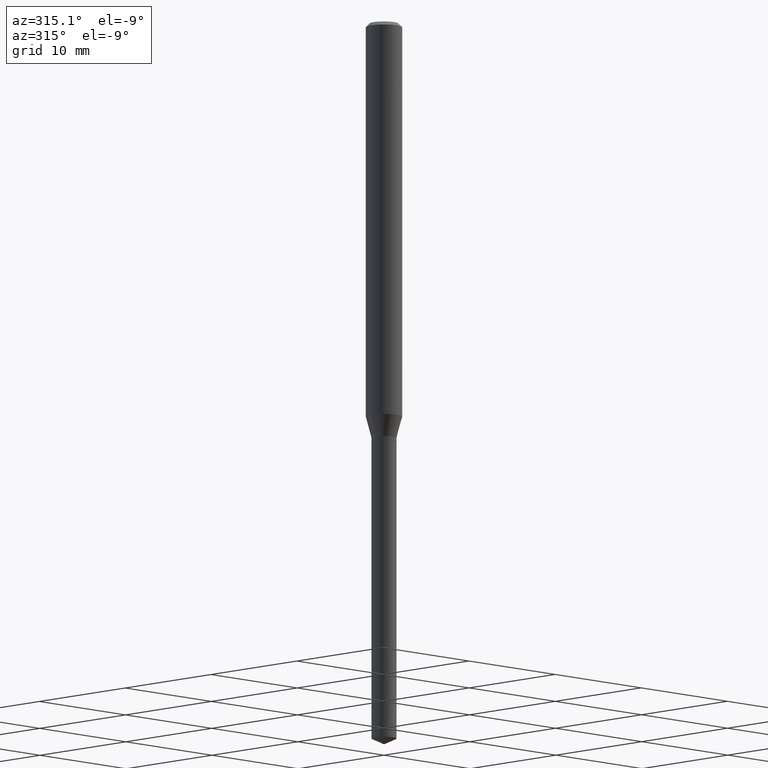
[diagram: clean part render]
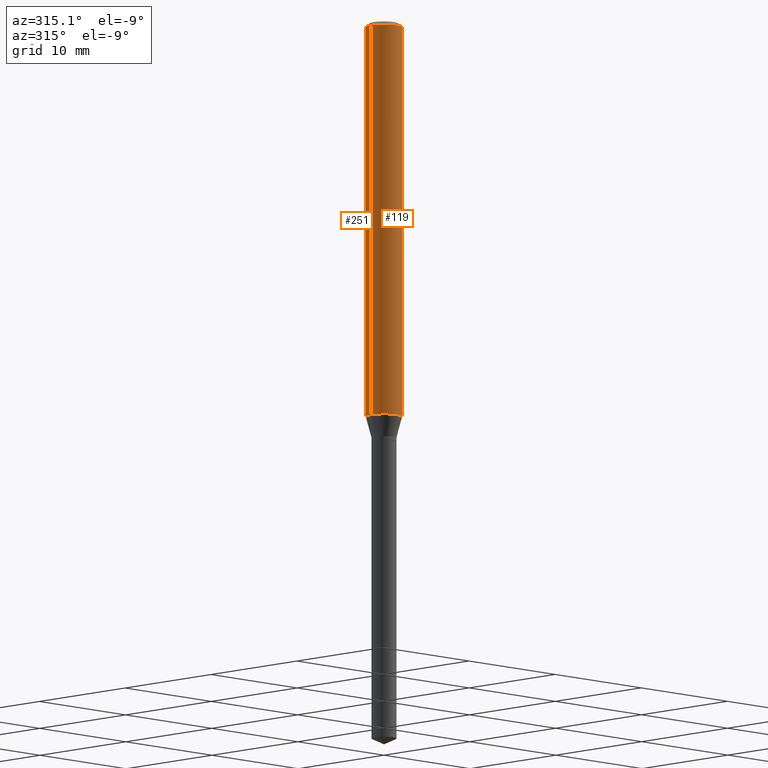
[diagram: same view with one multi-face feature highlighted, each face labeled with its STEP entity id]
A machine part, auxiliary view. The highlighted faces form ONE feature: a constant-radius fillet chain: 2 tangent blend faces with common blend radius 1.4999 mm. The faces share edges in the B-rep.
Their STEP definitions:
[1] entity #251 (Cylinder):
#8 = CYLINDRICAL_SURFACE ( 'NONE', #31, 0.05905000000000008159 ) ;
#13 = EDGE_CURVE ( 'NONE', #308, #357, #212, .T. ) ;
#20 = DIRECTION ( 'NONE',  ( 1.000000000000000000, -6.982962677686270655E-15, 0.000000000000000000 ) ) ;
#31 = AXIS2_PLACEMENT_3D ( 'NONE', #305, #395, #105 ) ;
#42 = AXIS2_PLACEMENT_3D ( 'NONE', #338, #323, #138 ) ;
#63 = CARTESIAN_POINT ( 'NONE',  ( -0.05905000000000015792, -4.078187959153139361E-15, -1.288210649898461790 ) ) ;
#83 = EDGE_LOOP ( 'NONE', ( #355, #443, #132, #485 ) ) ;
#89 = EDGE_CURVE ( 'NONE', #308, #288, #116, .T. ) ;
#98 = DIRECTION ( 'NONE',  ( -2.445468806185136877E-29, 3.491481338843145188E-15, 1.000000000000000000 ) ) ;
#105 = DIRECTION ( 'NONE',  ( 1.000000000000000000, -6.982962677686267499E-15, 4.876176775795936353E-29 ) ) ;
#114 = LINE ( 'NONE', #126, #242 ) ;
#116 = CIRCLE ( 'NONE', #159, 0.05905000000000015792 ) ;
#126 = CARTESIAN_POINT ( 'NONE',  ( -0.05905000000000008159, 4.195754854663397395E-16, -2.904631170795525745E-30 ) ) ;
#132 = ORIENTED_EDGE ( 'NONE', *, *, #350, .F. ) ;
#138 = DIRECTION ( 'NONE',  ( 1.000000000000000000, -6.982962677686266711E-15, 0.000000000000000000 ) ) ;
#159 = AXIS2_PLACEMENT_3D ( 'NONE', #471, #294, #20 ) ;
#212 = LINE ( 'NONE', #484, #241 ) ;
#240 = FACE_OUTER_BOUND ( 'NONE', #83, .T. ) ;
#241 = VECTOR ( 'NONE', #414, 39.37007874015748143 ) ;
#242 = VECTOR ( 'NONE', #98, 39.37007874015748143 ) ;
#251 = ADVANCED_FACE ( 'NONE', ( #240 ), #8, .T. ) ;
#288 = VERTEX_POINT ( 'NONE', #63 ) ;
#294 = DIRECTION ( 'NONE',  ( -2.445468806185136597E-29, 3.491481338843145583E-15, 1.000000000000000000 ) ) ;
#297 = CARTESIAN_POINT ( 'NONE',  ( 0.05904999999999999832, -4.535783407291118600E-16, -0.01181000000000007044 ) ) ;
#301 = VERTEX_POINT ( 'NONE', #375 ) ;
#305 = CARTESIAN_POINT ( 'NONE',  ( 0.000000000000000000, 0.000000000000000000, 0.000000000000000000 ) ) ;
#308 = VERTEX_POINT ( 'NONE', #379 ) ;
#323 = DIRECTION ( 'NONE',  ( -2.445468806185136597E-29, 3.491481338843145583E-15, 1.000000000000000000 ) ) ;
#338 = CARTESIAN_POINT ( 'NONE',  ( 2.888098660104663766E-31, -4.123439461173779647E-17, -0.01181000000000007044 ) ) ;
#350 = EDGE_CURVE ( 'NONE', #357, #301, #352, .T. ) ;
#352 = CIRCLE ( 'NONE', #42, 0.05904999999999999832 ) ;
#355 = ORIENTED_EDGE ( 'NONE', *, *, #89, .T. ) ;
#357 = VERTEX_POINT ( 'NONE', #297 ) ;
#374 = EDGE_CURVE ( 'NONE', #288, #301, #114, .T. ) ;
#375 = CARTESIAN_POINT ( 'NONE',  ( -0.05904999999999999832, -1.849923434149267615E-15, -0.01181000000000007044 ) ) ;
#379 = CARTESIAN_POINT ( 'NONE',  ( 0.05905000000000015792, -4.910107390736854563E-15, -1.288210649898461790 ) ) ;
#395 = DIRECTION ( 'NONE',  ( -2.445468806185136597E-29, 3.491481338843145583E-15, 1.000000000000000000 ) ) ;
#414 = DIRECTION ( 'NONE',  ( -2.445468806185136877E-29, 3.491481338843145188E-15, 1.000000000000000000 ) ) ;
#443 = ORIENTED_EDGE ( 'NONE', *, *, #374, .T. ) ;
#471 = CARTESIAN_POINT ( 'NONE',  ( 3.150278960122170469E-29, -4.497763444619479643E-15, -1.288210649898461790 ) ) ;
#484 = CARTESIAN_POINT ( 'NONE',  ( 0.05905000000000008159, -4.123439461173746736E-16, 2.879382386107504424E-30 ) ) ;
#485 = ORIENTED_EDGE ( 'NONE', *, *, #13, .F. ) ;
[2] entity #119 (Cylinder):
#13 = EDGE_CURVE ( 'NONE', #308, #357, #212, .T. ) ;
#15 = DIRECTION ( 'NONE',  ( -2.445468806185136597E-29, 3.491481338843145583E-15, 1.000000000000000000 ) ) ;
#22 = ORIENTED_EDGE ( 'NONE', *, *, #102, .F. ) ;
#32 = CARTESIAN_POINT ( 'NONE',  ( 0.000000000000000000, 0.000000000000000000, 0.000000000000000000 ) ) ;
#39 = DIRECTION ( 'NONE',  ( 1.000000000000000000, -6.982962677686267499E-15, 4.876176775795936353E-29 ) ) ;
#62 = ORIENTED_EDGE ( 'NONE', *, *, #13, .T. ) ;
#63 = CARTESIAN_POINT ( 'NONE',  ( -0.05905000000000015792, -4.078187959153139361E-15, -1.288210649898461790 ) ) ;
#79 = EDGE_CURVE ( 'NONE', #288, #308, #473, .T. ) ;
#98 = DIRECTION ( 'NONE',  ( -2.445468806185136877E-29, 3.491481338843145188E-15, 1.000000000000000000 ) ) ;
#102 = EDGE_CURVE ( 'NONE', #301, #357, #122, .T. ) ;
#114 = LINE ( 'NONE', #126, #242 ) ;
#119 = ADVANCED_FACE ( 'NONE', ( #135 ), #462, .T. ) ;
#122 = CIRCLE ( 'NONE', #197, 0.05904999999999999832 ) ;
#125 = ORIENTED_EDGE ( 'NONE', *, *, #374, .F. ) ;
#126 = CARTESIAN_POINT ( 'NONE',  ( -0.05905000000000008159, 4.195754854663397395E-16, -2.904631170795525745E-30 ) ) ;
#135 = FACE_OUTER_BOUND ( 'NONE', #322, .T. ) ;
#171 = CARTESIAN_POINT ( 'NONE',  ( 2.888098660104663766E-31, -4.123439461173779647E-17, -0.01181000000000007044 ) ) ;
#197 = AXIS2_PLACEMENT_3D ( 'NONE', #171, #447, #331 ) ;
#212 = LINE ( 'NONE', #484, #241 ) ;
#217 = CARTESIAN_POINT ( 'NONE',  ( 3.150278960122170469E-29, -4.497763444619479643E-15, -1.288210649898461790 ) ) ;
#241 = VECTOR ( 'NONE', #414, 39.37007874015748143 ) ;
#242 = VECTOR ( 'NONE', #98, 39.37007874015748143 ) ;
#250 = DIRECTION ( 'NONE',  ( 1.000000000000000000, -6.982962677686270655E-15, 0.000000000000000000 ) ) ;
#288 = VERTEX_POINT ( 'NONE', #63 ) ;
#297 = CARTESIAN_POINT ( 'NONE',  ( 0.05904999999999999832, -4.535783407291118600E-16, -0.01181000000000007044 ) ) ;
#301 = VERTEX_POINT ( 'NONE', #375 ) ;
#308 = VERTEX_POINT ( 'NONE', #379 ) ;
#315 = AXIS2_PLACEMENT_3D ( 'NONE', #217, #15, #250 ) ;
#322 = EDGE_LOOP ( 'NONE', ( #125, #376, #62, #22 ) ) ;
#331 = DIRECTION ( 'NONE',  ( 1.000000000000000000, -6.982962677686266711E-15, 0.000000000000000000 ) ) ;
#357 = VERTEX_POINT ( 'NONE', #297 ) ;
#374 = EDGE_CURVE ( 'NONE', #288, #301, #114, .T. ) ;
#375 = CARTESIAN_POINT ( 'NONE',  ( -0.05904999999999999832, -1.849923434149267615E-15, -0.01181000000000007044 ) ) ;
#376 = ORIENTED_EDGE ( 'NONE', *, *, #79, .T. ) ;
#379 = CARTESIAN_POINT ( 'NONE',  ( 0.05905000000000015792, -4.910107390736854563E-15, -1.288210649898461790 ) ) ;
#414 = DIRECTION ( 'NONE',  ( -2.445468806185136877E-29, 3.491481338843145188E-15, 1.000000000000000000 ) ) ;
#426 = DIRECTION ( 'NONE',  ( -2.445468806185136597E-29, 3.491481338843145583E-15, 1.000000000000000000 ) ) ;
#447 = DIRECTION ( 'NONE',  ( -2.445468806185136597E-29, 3.491481338843145583E-15, 1.000000000000000000 ) ) ;
#462 = CYLINDRICAL_SURFACE ( 'NONE', #463, 0.05905000000000008159 ) ;
#463 = AXIS2_PLACEMENT_3D ( 'NONE', #32, #426, #39 ) ;
#473 = CIRCLE ( 'NONE', #315, 0.05905000000000015792 ) ;
#484 = CARTESIAN_POINT ( 'NONE',  ( 0.05905000000000008159, -4.123439461173746736E-16, 2.879382386107504424E-30 ) ) ;